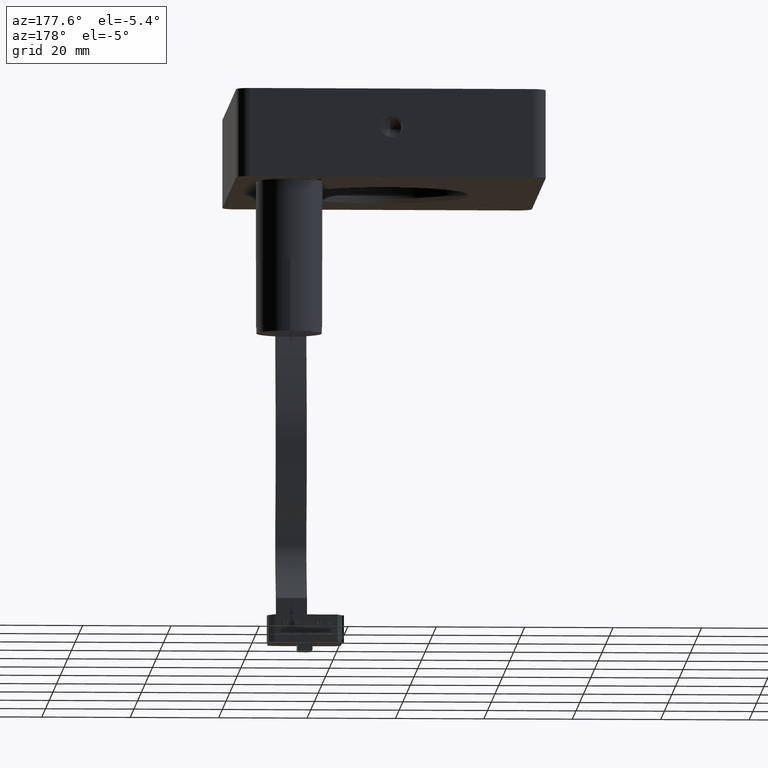
[diagram: clean part render]
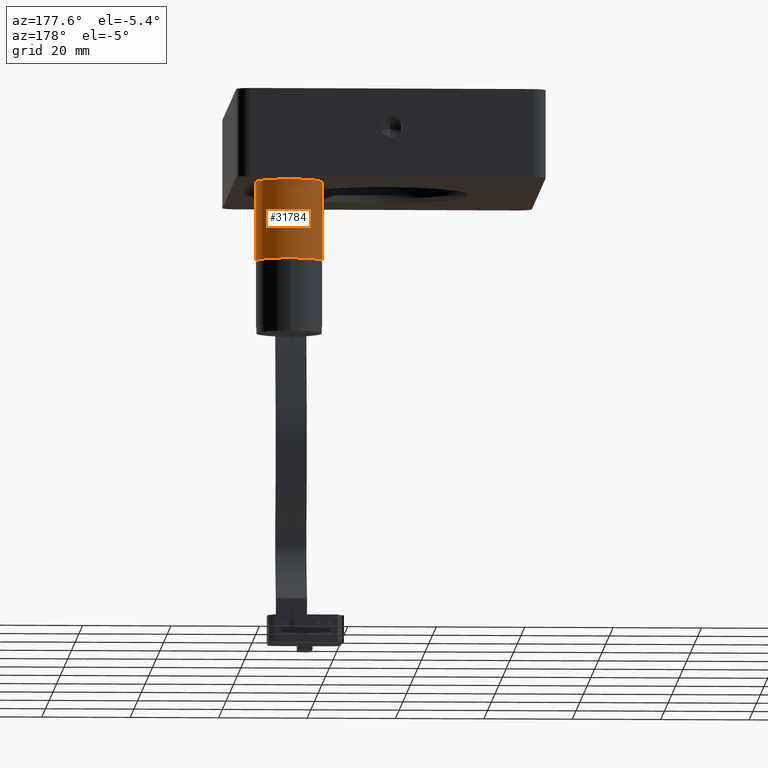
[diagram: same view with one face highlighted and labeled with its STEP entity id]
A machine part, auxiliary view. The second image highlights one B-rep face of the part: STEP entity #31784.
In plain terms, the highlighted cylindrical surface (edge-blend (fillet) strip) has radius 7.5 mm, axis along (0, 0, -1).
Its self-contained STEP definition (entity closure, byte-faithful):
#1364 = DIRECTION ( 'NONE',  ( 0.0000000000000000000, 0.0000000000000000000, -1.000000000000000000 ) ) ;
#2338 = DIRECTION ( 'NONE',  ( -1.000000000000000000, 0.0000000000000000000, 0.0000000000000000000 ) ) ;
#2826 = LINE ( 'NONE', #45763, #43092 ) ;
#2903 = VERTEX_POINT ( 'NONE', #7010 ) ;
#3265 = ORIENTED_EDGE ( 'NONE', *, *, #25259, .F. ) ;
#3397 = EDGE_CURVE ( 'NONE', #17636, #14354, #2826, .T. ) ;
#3559 = CARTESIAN_POINT ( 'NONE',  ( 9.651920938367972300, 33.22928064321713000, -20.89999999997362700 ) ) ;
#3565 = CIRCLE ( 'NONE', #12115, 7.500000000000013300 ) ;
#7010 = CARTESIAN_POINT ( 'NONE',  ( 2.151920938367971800, 33.22928064321713000, -20.89999999997362700 ) ) ;
#9791 = CARTESIAN_POINT ( 'NONE',  ( 9.651920938367972300, 33.22928064321713000, -2.499999999973627300 ) ) ;
#10535 = EDGE_CURVE ( 'NONE', #14848, #2903, #40822, .T. ) ;
#11889 = DIRECTION ( 'NONE',  ( 0.0000000000000000000, 0.0000000000000000000, 1.000000000000000000 ) ) ;
#12115 = AXIS2_PLACEMENT_3D ( 'NONE', #29164, #13651, #41438 ) ;
#13651 = DIRECTION ( 'NONE',  ( 0.0000000000000000000, 0.0000000000000000000, 1.000000000000000000 ) ) ;
#14354 = VERTEX_POINT ( 'NONE', #49509 ) ;
#14709 = DIRECTION ( 'NONE',  ( 0.0000000000000000000, 0.0000000000000000000, -1.000000000000000000 ) ) ;
#14848 = VERTEX_POINT ( 'NONE', #21310 ) ;
#17085 = VECTOR ( 'NONE', #1364, 1000.000000000000000 ) ;
#17210 = FACE_OUTER_BOUND ( 'NONE', #35557, .T. ) ;
#17636 = VERTEX_POINT ( 'NONE', #42500 ) ;
#21310 = CARTESIAN_POINT ( 'NONE',  ( 2.151920938367971800, 33.22928064321713000, -2.499999999973627300 ) ) ;
#22683 = ORIENTED_EDGE ( 'NONE', *, *, #10535, .F. ) ;
#25259 = EDGE_CURVE ( 'NONE', #17636, #14848, #3565, .T. ) ;
#26112 = AXIS2_PLACEMENT_3D ( 'NONE', #9791, #37139, #2338 ) ;
#28959 = CARTESIAN_POINT ( 'NONE',  ( 2.151920938367958900, 33.22928064321713000, -2.499999999973627300 ) ) ;
#29164 = CARTESIAN_POINT ( 'NONE',  ( 9.651920938367972300, 33.22928064321713000, -2.499999999973627300 ) ) ;
#29870 = EDGE_CURVE ( 'NONE', #14354, #2903, #39193, .T. ) ;
#31784 = ADVANCED_FACE ( 'NONE', ( #17210 ), #49577, .T. ) ;
#35557 = EDGE_LOOP ( 'NONE', ( #3265, #48160, #38416, #22683 ) ) ;
#37139 = DIRECTION ( 'NONE',  ( 0.0000000000000000000, 0.0000000000000000000, -1.000000000000000000 ) ) ;
#38416 = ORIENTED_EDGE ( 'NONE', *, *, #29870, .T. ) ;
#39193 = CIRCLE ( 'NONE', #42747, 7.500000000000013300 ) ;
#40822 = LINE ( 'NONE', #28959, #17085 ) ;
#41438 = DIRECTION ( 'NONE',  ( 1.000000000000000000, 0.0000000000000000000, 0.0000000000000000000 ) ) ;
#42500 = CARTESIAN_POINT ( 'NONE',  ( 17.15192093836797200, 33.22928064321713700, -2.499999999973627300 ) ) ;
#42747 = AXIS2_PLACEMENT_3D ( 'NONE', #3559, #11889, #46866 ) ;
#43092 = VECTOR ( 'NONE', #14709, 1000.000000000000000 ) ;
#45763 = CARTESIAN_POINT ( 'NONE',  ( 17.15192093836798600, 33.22928064321713700, -2.499999999973627300 ) ) ;
#46866 = DIRECTION ( 'NONE',  ( 1.000000000000000000, 0.0000000000000000000, 0.0000000000000000000 ) ) ;
#48160 = ORIENTED_EDGE ( 'NONE', *, *, #3397, .T. ) ;
#49509 = CARTESIAN_POINT ( 'NONE',  ( 17.15192093836797200, 33.22928064321713700, -20.89999999997362700 ) ) ;
#49577 = CYLINDRICAL_SURFACE ( 'NONE', #26112, 7.500000000000012400 ) ;